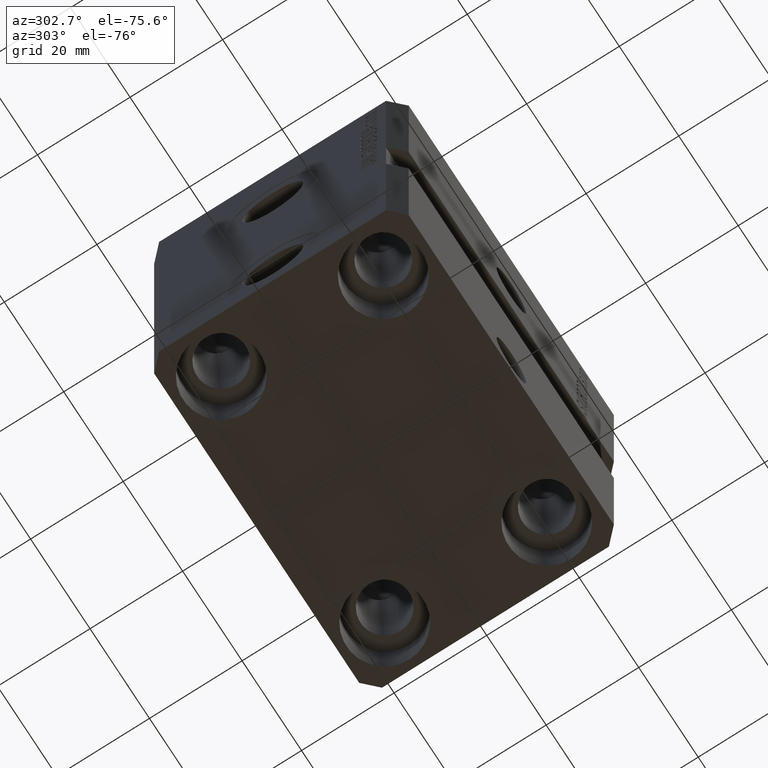
[diagram: clean part render]
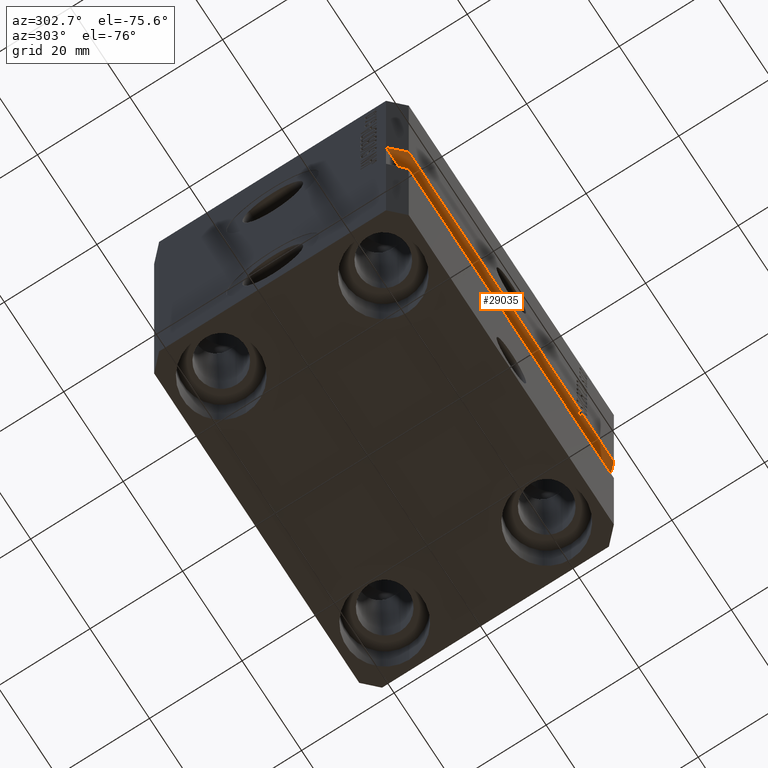
[diagram: same view with one face highlighted and labeled with its STEP entity id]
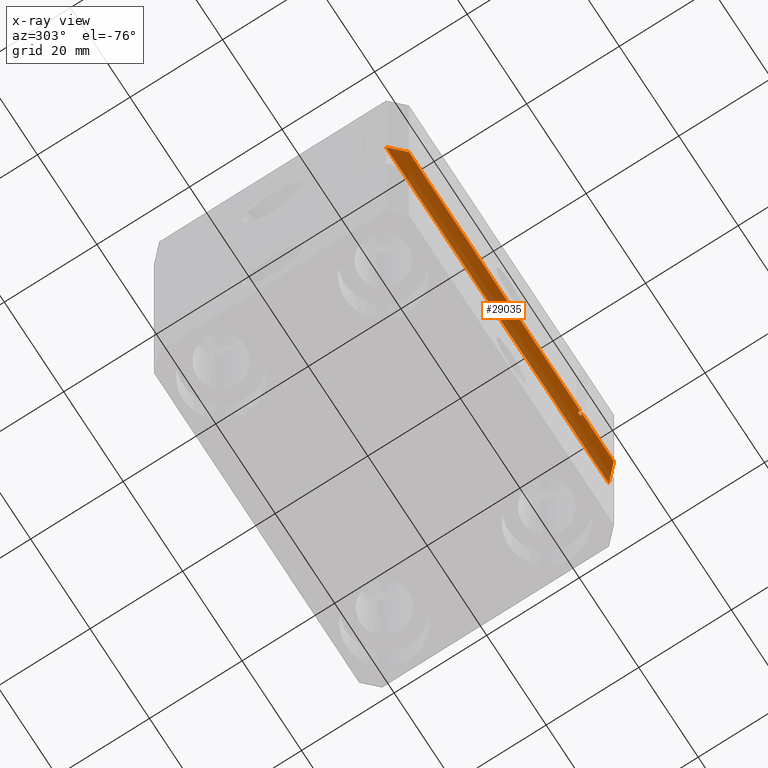
[diagram: x-ray of the same camera — body ghosted, the highlighted face saturated]
A machine part, auxiliary view. The second image highlights one B-rep face of the part: STEP entity #29035.
The next image is the same camera in x-ray: the body ghosted, the highlighted face saturated — about 34% of this face is hidden behind the body in this view.
In plain terms, the highlighted planar face has unit normal (-0, -0, 1).
Its self-contained STEP definition (entity closure, byte-faithful):
#5 = DIRECTION ( 'NONE',  ( -0.7071067811865483499, 0.7071067811865466846, -1.308410382236480744E-16 ) ) ;
#68 = EDGE_CURVE ( 'NONE', #32163, #37476, #31970, .T. ) ;
#286 = VECTOR ( 'NONE', #24658, 1000.000000000000000 ) ;
#411 = DIRECTION ( 'NONE',  ( -1.000000000000000000, -9.251858538542972814E-17, -1.850371707708594563E-16 ) ) ;
#871 = EDGE_CURVE ( 'NONE', #37045, #32390, #7173, .T. ) ;
#936 = VECTOR ( 'NONE', #14606, 1000.000000000000000 ) ;
#1488 = EDGE_CURVE ( 'NONE', #12479, #28564, #10464, .T. ) ;
#2245 = EDGE_CURVE ( 'NONE', #26580, #32163, #14483, .T. ) ;
#2565 = EDGE_CURVE ( 'NONE', #37476, #32390, #6998, .T. ) ;
#5445 = PLANE ( 'NONE',  #28118 ) ;
#6650 = LINE ( 'NONE', #7090, #7412 ) ;
#6998 = LINE ( 'NONE', #7663, #11110 ) ;
#7090 = CARTESIAN_POINT ( 'NONE',  ( 37.49999999999999289, -27.49999999999999289, -33.99999999999998579 ) ) ;
#7173 = LINE ( 'NONE', #14610, #23971 ) ;
#7412 = VECTOR ( 'NONE', #14073, 1000.000000000000000 ) ;
#7663 = CARTESIAN_POINT ( 'NONE',  ( -37.50000000000000000, -24.49999999999999645, -34.00000000000000000 ) ) ;
#7943 = DIRECTION ( 'NONE',  ( 2.352167425053553784E-16, -1.000000000000000000, 2.176192027556415325E-32 ) ) ;
#8814 = FACE_OUTER_BOUND ( 'NONE', #33300, .T. ) ;
#9385 = LINE ( 'NONE', #44119, #14015 ) ;
#9498 = DIRECTION ( 'NONE',  ( -1.850371707708594563E-16, -2.176192027556456926E-32, 1.000000000000000000 ) ) ;
#9721 = DIRECTION ( 'NONE',  ( 1.000000000000000000, 9.912705577010328508E-16, 1.850371707708594563E-16 ) ) ;
#9834 = DIRECTION ( 'NONE',  ( -0.7071067811865474617, -0.7071067811865474617, -1.308410382236479511E-16 ) ) ;
#10464 = LINE ( 'NONE', #21513, #286 ) ;
#10644 = ORIENTED_EDGE ( 'NONE', *, *, #2565, .T. ) ;
#11110 = VECTOR ( 'NONE', #5, 1000.000000000000000 ) ;
#12422 = DIRECTION ( 'NONE',  ( 1.000000000000000000, 0.000000000000000000, 1.850371707708594563E-16 ) ) ;
#12479 = VERTEX_POINT ( 'NONE', #29307 ) ;
#14015 = VECTOR ( 'NONE', #9834, 1000.000000000000114 ) ;
#14073 = DIRECTION ( 'NONE',  ( -1.000000000000000000, -9.251858538542972814E-17, -1.850371707708594563E-16 ) ) ;
#14331 = CARTESIAN_POINT ( 'NONE',  ( -37.50000000000000000, -24.50000000000000000, -34.00000000000000000 ) ) ;
#14380 = CARTESIAN_POINT ( 'NONE',  ( 37.49999999999999289, -27.49999999999999289, -33.99999999999998579 ) ) ;
#14483 = LINE ( 'NONE', #18096, #24035 ) ;
#14606 = DIRECTION ( 'NONE',  ( -1.000000000000000000, -9.251858538542972814E-17, -1.850371707708594563E-16 ) ) ;
#14610 = CARTESIAN_POINT ( 'NONE',  ( 37.49999999999999289, -24.49999999999999289, -33.99999999999998579 ) ) ;
#14653 = ORIENTED_EDGE ( 'NONE', *, *, #40211, .F. ) ;
#14990 = ORIENTED_EDGE ( 'NONE', *, *, #68, .T. ) ;
#15208 = ORIENTED_EDGE ( 'NONE', *, *, #39817, .T. ) ;
#16263 = CARTESIAN_POINT ( 'NONE',  ( 37.49999999999999289, -24.49999999999999289, -33.99999999999998579 ) ) ;
#18096 = CARTESIAN_POINT ( 'NONE',  ( 23.15804418645328866, -26.99999999999999645, -33.99999999999998579 ) ) ;
#20338 = ORIENTED_EDGE ( 'NONE', *, *, #871, .F. ) ;
#21513 = CARTESIAN_POINT ( 'NONE',  ( 23.91630950035033720, -26.99999999999999289, -33.99999999999998579 ) ) ;
#23971 = VECTOR ( 'NONE', #411, 1000.000000000000000 ) ;
#24035 = VECTOR ( 'NONE', #7943, 1000.000000000000000 ) ;
#24658 = DIRECTION ( 'NONE',  ( -2.352167425053554770E-16, 1.000000000000000000, -2.176192027556416146E-32 ) ) ;
#24875 = CARTESIAN_POINT ( 'NONE',  ( 23.15804418645330287, -26.99999999999999645, -33.99999999999998579 ) ) ;
#25046 = CARTESIAN_POINT ( 'NONE',  ( 23.15804418645328511, -27.49999999999999289, -33.99999999999998579 ) ) ;
#26580 = VERTEX_POINT ( 'NONE', #24875 ) ;
#26856 = LINE ( 'NONE', #40633, #26909 ) ;
#26909 = VECTOR ( 'NONE', #9721, 1000.000000000000000 ) ;
#27043 = ORIENTED_EDGE ( 'NONE', *, *, #35981, .T. ) ;
#28118 = AXIS2_PLACEMENT_3D ( 'NONE', #16263, #9498, #12422 ) ;
#28564 = VERTEX_POINT ( 'NONE', #35657 ) ;
#29035 = ADVANCED_FACE ( 'NONE', ( #8814 ), #5445, .F. ) ;
#29189 = CARTESIAN_POINT ( 'NONE',  ( 37.49999999999999289, -24.49999999999999289, -33.99999999999998579 ) ) ;
#29307 = CARTESIAN_POINT ( 'NONE',  ( 23.91630950035034076, -27.49999999999999289, -33.99999999999998579 ) ) ;
#31970 = LINE ( 'NONE', #14380, #936 ) ;
#32163 = VERTEX_POINT ( 'NONE', #25046 ) ;
#32390 = VERTEX_POINT ( 'NONE', #14331 ) ;
#33300 = EDGE_LOOP ( 'NONE', ( #15208, #27043, #43919, #14653, #42720, #14990, #10644, #20338 ) ) ;
#35595 = CARTESIAN_POINT ( 'NONE',  ( -34.49999999999998579, -27.50000000000000000, -34.00000000000000000 ) ) ;
#35657 = CARTESIAN_POINT ( 'NONE',  ( 23.91630950035034786, -26.99999999999999289, -33.99999999999998579 ) ) ;
#35981 = EDGE_CURVE ( 'NONE', #41166, #12479, #6650, .T. ) ;
#37045 = VERTEX_POINT ( 'NONE', #29189 ) ;
#37476 = VERTEX_POINT ( 'NONE', #35595 ) ;
#39817 = EDGE_CURVE ( 'NONE', #37045, #41166, #9385, .T. ) ;
#40211 = EDGE_CURVE ( 'NONE', #26580, #28564, #26856, .T. ) ;
#40633 = CARTESIAN_POINT ( 'NONE',  ( 3.343359577173496739E-14, -27.00000000000001776, -33.99999999999999289 ) ) ;
#41166 = VERTEX_POINT ( 'NONE', #41979 ) ;
#41979 = CARTESIAN_POINT ( 'NONE',  ( 34.49999999999999289, -27.49999999999999289, -33.99999999999998579 ) ) ;
#42720 = ORIENTED_EDGE ( 'NONE', *, *, #2245, .T. ) ;
#43919 = ORIENTED_EDGE ( 'NONE', *, *, #1488, .T. ) ;
#44119 = CARTESIAN_POINT ( 'NONE',  ( 34.49999999999998579, -27.50000000000000000, -33.99999999999998579 ) ) ;